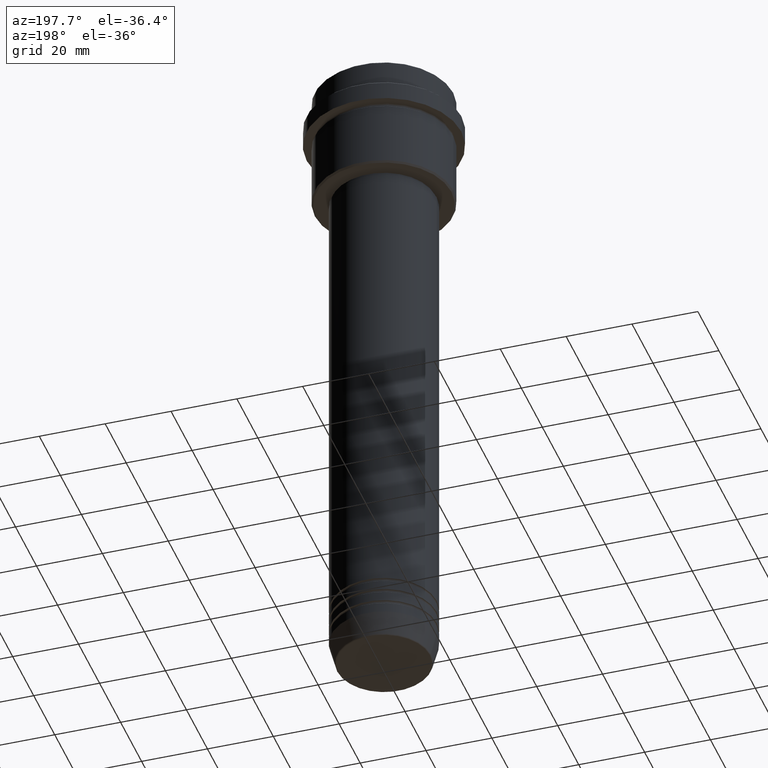
[diagram: clean part render]
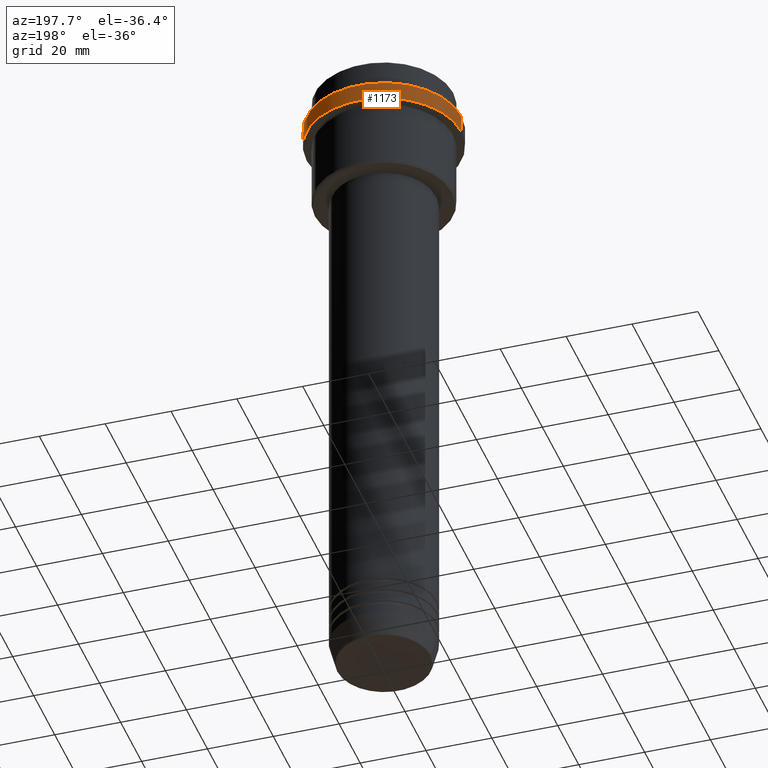
[diagram: same view with one face highlighted and labeled with its STEP entity id]
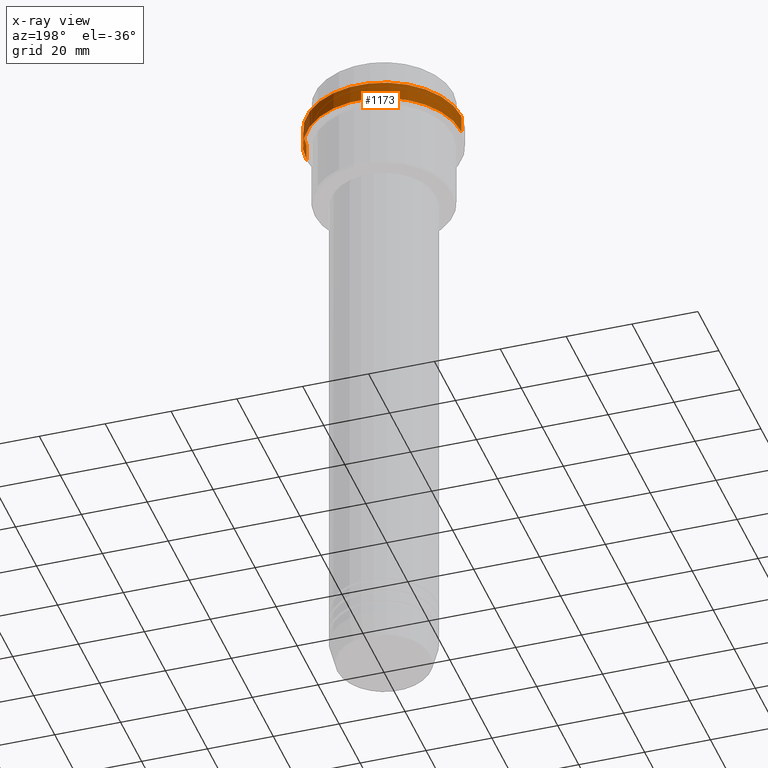
[diagram: x-ray of the same camera — body ghosted, the highlighted face saturated]
A machine part, auxiliary view. The second image highlights one B-rep face of the part: STEP entity #1173.
The next image is the same camera in x-ray: the body ghosted, the highlighted face saturated — about 0% of this face is hidden behind the body in this view.
In plain terms, the highlighted cylindrical surface (partial cylindrical patch) has radius 23.5 mm, axis along (-0, -0, 1).
Its self-contained STEP definition (entity closure, byte-faithful):
#93 = DIRECTION ( 'NONE',  ( 1.000000000000000000, 0.000000000000000000, 0.000000000000000000 ) ) ;
#98 = EDGE_LOOP ( 'NONE', ( #213, #934, #903, #364 ) ) ;
#200 = CIRCLE ( 'NONE', #315, 23.50000000000000355 ) ;
#209 = DIRECTION ( 'NONE',  ( 0.000000000000000000, 0.000000000000000000, -1.000000000000000000 ) ) ;
#213 = ORIENTED_EDGE ( 'NONE', *, *, #1413, .T. ) ;
#261 = CARTESIAN_POINT ( 'NONE',  ( 0.000000000000000000, 0.000000000000000000, 0.000000000000000000 ) ) ;
#315 = AXIS2_PLACEMENT_3D ( 'NONE', #1075, #831, #93 ) ;
#363 = VECTOR ( 'NONE', #850, 1000.000000000000000 ) ;
#364 = ORIENTED_EDGE ( 'NONE', *, *, #719, .F. ) ;
#416 = LINE ( 'NONE', #1187, #363 ) ;
#499 = AXIS2_PLACEMENT_3D ( 'NONE', #1395, #209, #1314 ) ;
#501 = CARTESIAN_POINT ( 'NONE',  ( -23.50000000000000000, 2.877919977996280320E-15, 0.000000000000000000 ) ) ;
#596 = CYLINDRICAL_SURFACE ( 'NONE', #680, 23.50000000000000000 ) ;
#674 = VERTEX_POINT ( 'NONE', #973 ) ;
#680 = AXIS2_PLACEMENT_3D ( 'NONE', #261, #698, #787 ) ;
#685 = EDGE_CURVE ( 'NONE', #674, #1016, #1124, .T. ) ;
#698 = DIRECTION ( 'NONE',  ( -0.000000000000000000, -0.000000000000000000, 1.000000000000000000 ) ) ;
#719 = EDGE_CURVE ( 'NONE', #1231, #1016, #416, .T. ) ;
#737 = CARTESIAN_POINT ( 'NONE',  ( 23.50000000000000000, 0.000000000000000000, -9.500000000000026645 ) ) ;
#787 = DIRECTION ( 'NONE',  ( 1.000000000000000000, 0.000000000000000000, 0.000000000000000000 ) ) ;
#831 = DIRECTION ( 'NONE',  ( -0.000000000000000000, -0.000000000000000000, 1.000000000000000000 ) ) ;
#850 = DIRECTION ( 'NONE',  ( -0.000000000000000000, -0.000000000000000000, 1.000000000000000000 ) ) ;
#903 = ORIENTED_EDGE ( 'NONE', *, *, #685, .T. ) ;
#922 = CARTESIAN_POINT ( 'NONE',  ( 23.50000000000000355, 0.000000000000000000, -15.00000000000000000 ) ) ;
#934 = ORIENTED_EDGE ( 'NONE', *, *, #977, .T. ) ;
#973 = CARTESIAN_POINT ( 'NONE',  ( -23.50000000000000000, 2.877919977996280320E-15, -9.500000000000026645 ) ) ;
#977 = EDGE_CURVE ( 'NONE', #1203, #674, #1276, .T. ) ;
#1016 = VERTEX_POINT ( 'NONE', #737 ) ;
#1075 = CARTESIAN_POINT ( 'NONE',  ( 0.000000000000000000, 0.000000000000000000, -15.00000000000000000 ) ) ;
#1124 = CIRCLE ( 'NONE', #499, 23.50000000000000000 ) ;
#1127 = CARTESIAN_POINT ( 'NONE',  ( -23.50000000000000711, 2.877919977996281109E-15, -15.00000000000000000 ) ) ;
#1171 = VECTOR ( 'NONE', #1403, 1000.000000000000000 ) ;
#1173 = ADVANCED_FACE ( 'NONE', ( #1343 ), #596, .T. ) ;
#1187 = CARTESIAN_POINT ( 'NONE',  ( 23.50000000000000000, 0.000000000000000000, 0.000000000000000000 ) ) ;
#1203 = VERTEX_POINT ( 'NONE', #1127 ) ;
#1231 = VERTEX_POINT ( 'NONE', #922 ) ;
#1276 = LINE ( 'NONE', #501, #1171 ) ;
#1314 = DIRECTION ( 'NONE',  ( 1.000000000000000000, 0.000000000000000000, 0.000000000000000000 ) ) ;
#1343 = FACE_OUTER_BOUND ( 'NONE', #98, .T. ) ;
#1395 = CARTESIAN_POINT ( 'NONE',  ( 0.000000000000000000, 0.000000000000000000, -9.500000000000026645 ) ) ;
#1403 = DIRECTION ( 'NONE',  ( -0.000000000000000000, -0.000000000000000000, 1.000000000000000000 ) ) ;
#1413 = EDGE_CURVE ( 'NONE', #1231, #1203, #200, .T. ) ;